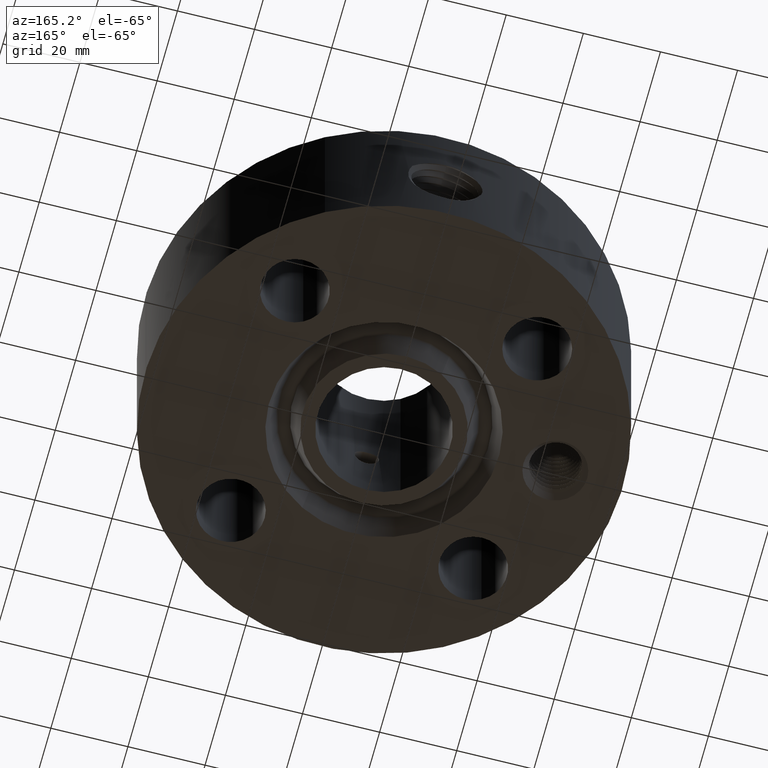
[diagram: clean part render]
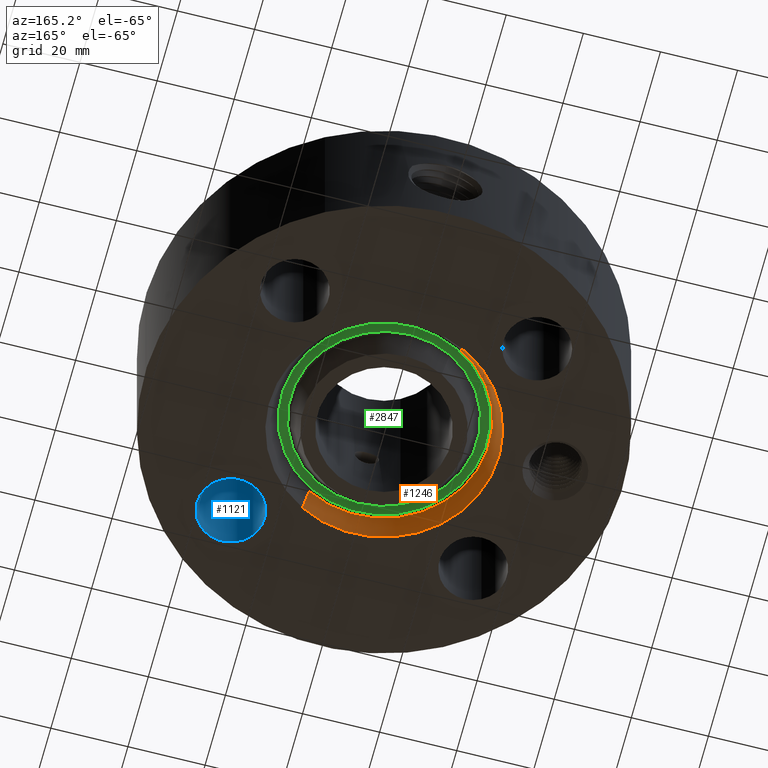
[diagram: same view with three faces highlighted in distinct colors, each labeled with its STEP entity id]
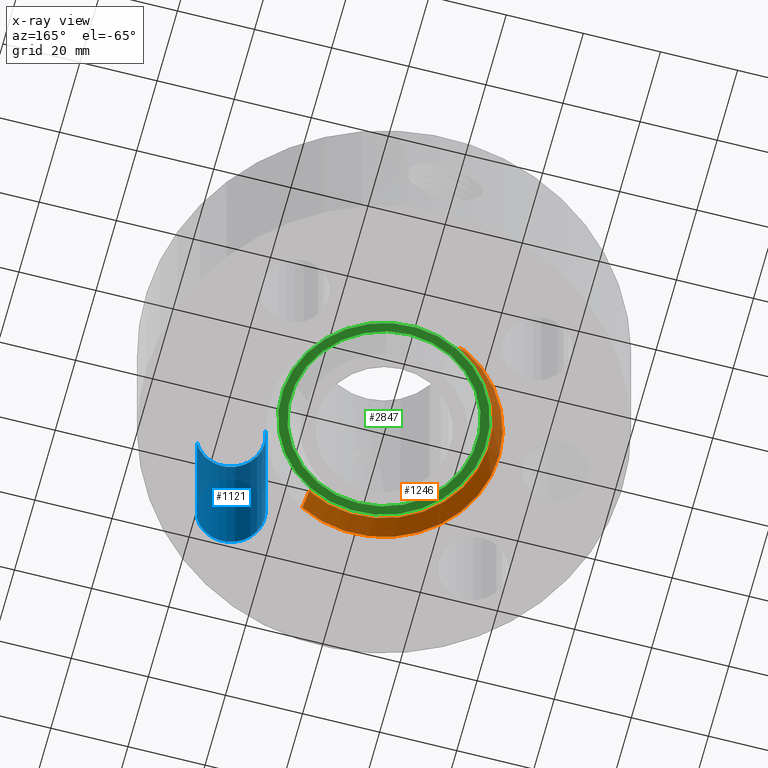
[diagram: x-ray of the same camera — body ghosted, the three highlighted faces saturated]
A machine part, auxiliary view with three faces highlighted in distinct colors.
The next image is the same camera in x-ray (body ghosted, the three faces saturated) — at least one of them is partly hidden behind the body in this view.
Their STEP definitions:

[orange] entity #1246 — the highlighted conical surface has half-angle 23 deg.
#299=AXIS2_PLACEMENT_3D('Circle Axis2P3D',#297,#298,$) ;
#1219=AXIS2_PLACEMENT_3D('Cone Axis2P3D',#1216,#1217,#1218) ;
#1230=AXIS2_PLACEMENT_3D('Circle Axis2P3D',#1228,#1229,$) ;
#297=CARTESIAN_POINT('Axis2P3D Location',(-1.39870617276E-016,1.39870617276E-016,0.)) ;
#301=CARTESIAN_POINT('Vertex',(0.561886731246,-1.02852676254,3.49676543189E-017)) ;
#303=CARTESIAN_POINT('Vertex',(-0.561886731246,1.02852676254,-3.49676543189E-017)) ;
#1216=CARTESIAN_POINT('Axis2P3D Location',(0.,0.,0.231112664984)) ;
#1221=CARTESIAN_POINT('Line Origine',(-0.538370547572,0.985480677062,0.115556332492)) ;
#1225=CARTESIAN_POINT('Vertex',(-0.514854363898,0.942434591585,0.231112664984)) ;
#1228=CARTESIAN_POINT('Axis2P3D Location',(0.,0.,0.231112664984)) ;
#1232=CARTESIAN_POINT('Vertex',(0.514854363898,-0.942434591585,0.231112664984)) ;
#1235=CARTESIAN_POINT('Line Origine',(0.538370547572,-0.985480677062,0.115556332492)) ;
#298=DIRECTION('Axis2P3D Direction',(0.,0.,-0.0393700787402)) ;
#1217=DIRECTION('Axis2P3D Direction',(-0.,-0.,-0.0393700787402)) ;
#1218=DIRECTION('Axis2P3D XDirection',(-0.0188750212049,0.0345504945626,0.)) ;
#1222=DIRECTION('Vector Direction',(-0.00737505833565,0.0134999537303,-0.0362403485611)) ;
#1229=DIRECTION('Axis2P3D Direction',(0.,0.,-0.0393700787402)) ;
#1236=DIRECTION('Vector Direction',(0.00737505833565,-0.0134999537303,-0.0362403485611)) ;
#1223=VECTOR('Line Direction',#1222,0.0393700787402) ;
#1237=VECTOR('Line Direction',#1236,0.0393700787402) ;
#1241=ORIENTED_EDGE('',*,*,#305,.T.) ;
#1242=ORIENTED_EDGE('',*,*,#1227,.T.) ;
#1243=ORIENTED_EDGE('',*,*,#1234,.T.) ;
#1244=ORIENTED_EDGE('',*,*,#1239,.F.) ;
#1246=ADVANCED_FACE('PartBody',(#1245),#1220,.F.) ;
#300=CIRCLE('generated circle',#299,1.172) ;
#1231=CIRCLE('generated circle',#1230,1.07389849401) ;
#1220=CONICAL_SURFACE('Cone',#1219,1.07389849401,0.401425727959) ;
#305=EDGE_CURVE('',#302,#304,#300,.T.) ;
#1227=EDGE_CURVE('',#304,#1226,#1224,.F.) ;
#1234=EDGE_CURVE('',#1226,#1233,#1231,.F.) ;
#1239=EDGE_CURVE('',#302,#1233,#1238,.F.) ;
#1240=EDGE_LOOP('',(#1241,#1242,#1243,#1244)) ;
#1245=FACE_OUTER_BOUND('',#1240,.T.) ;
#1224=LINE('Line',#1221,#1223) ;
#1238=LINE('Line',#1235,#1237) ;
#302=VERTEX_POINT('',#301) ;
#304=VERTEX_POINT('',#303) ;
#1226=VERTEX_POINT('',#1225) ;
#1233=VERTEX_POINT('',#1232) ;

[blue] entity #1121 — the highlighted cylindrical surface (edge-blend (fillet) strip) has radius 8.763 mm, axis along (0, -0, -1).
#227=AXIS2_PLACEMENT_3D('Circle Axis2P3D',#225,#226,$) ;
#484=AXIS2_PLACEMENT_3D('Circle Axis2P3D',#482,#483,$) ;
#1103=AXIS2_PLACEMENT_3D('Cylinder Axis2P3D',#1100,#1101,#1102) ;
#225=CARTESIAN_POINT('Axis2P3D Location',(1.23743686708,-1.23743686708,0.)) ;
#229=CARTESIAN_POINT('Vertex',(1.54020285093,-1.4028386779,0.)) ;
#231=CARTESIAN_POINT('Vertex',(0.934670883228,-1.07203505626,0.)) ;
#477=CARTESIAN_POINT('Vertex',(0.934670883228,-1.07203505626,1.75000000001)) ;
#479=CARTESIAN_POINT('Vertex',(1.54020285093,-1.4028386779,1.75000000001)) ;
#482=CARTESIAN_POINT('Axis2P3D Location',(1.23743686708,-1.23743686708,1.75000000001)) ;
#1100=CARTESIAN_POINT('Axis2P3D Location',(1.23743686708,-1.23743686708,1.74606299213)) ;
#1105=CARTESIAN_POINT('Line Origine',(1.54020285093,-1.4028386779,0.875000000003)) ;
#1110=CARTESIAN_POINT('Line Origine',(0.934670883228,-1.07203505626,0.875000000003)) ;
#226=DIRECTION('Axis2P3D Direction',(0.,0.,-0.0393700787402)) ;
#483=DIRECTION('Axis2P3D Direction',(0.,0.,-0.0393700787402)) ;
#1101=DIRECTION('Axis2P3D Direction',(0.,-0.,-0.0393700787402)) ;
#1102=DIRECTION('Axis2P3D XDirection',(-0.0345504945626,0.0188750212049,0.)) ;
#1106=DIRECTION('Vector Direction',(0.,0.,-0.0393700787402)) ;
#1111=DIRECTION('Vector Direction',(0.,0.,-0.0393700787402)) ;
#1107=VECTOR('Line Direction',#1106,0.0393700787402) ;
#1112=VECTOR('Line Direction',#1111,0.0393700787402) ;
#1116=ORIENTED_EDGE('',*,*,#1109,.F.) ;
#1117=ORIENTED_EDGE('',*,*,#233,.T.) ;
#1118=ORIENTED_EDGE('',*,*,#1114,.T.) ;
#1119=ORIENTED_EDGE('',*,*,#486,.F.) ;
#1121=ADVANCED_FACE('PartBody',(#1120),#1104,.F.) ;
#228=CIRCLE('generated circle',#227,0.345000000001) ;
#485=CIRCLE('generated circle',#484,0.345000000001) ;
#1104=CYLINDRICAL_SURFACE('generated cylinder',#1103,0.345000000001) ;
#233=EDGE_CURVE('',#230,#232,#228,.T.) ;
#486=EDGE_CURVE('',#480,#478,#485,.T.) ;
#1109=EDGE_CURVE('',#230,#480,#1108,.F.) ;
#1114=EDGE_CURVE('',#232,#478,#1113,.F.) ;
#1115=EDGE_LOOP('',(#1116,#1117,#1118,#1119)) ;
#1120=FACE_OUTER_BOUND('',#1115,.T.) ;
#1108=LINE('Line',#1105,#1107) ;
#1113=LINE('Line',#1110,#1112) ;
#230=VERTEX_POINT('',#229) ;
#232=VERTEX_POINT('',#231) ;
#478=VERTEX_POINT('',#477) ;
#480=VERTEX_POINT('',#479) ;

[green] entity #2847 — the highlighted planar face has unit normal (0, 0, 1).
#2063=AXIS2_PLACEMENT_3D('Circle Axis2P3D',#2061,#2062,$) ;
#2082=AXIS2_PLACEMENT_3D('Circle Axis2P3D',#2080,#2081,$) ;
#2823=AXIS2_PLACEMENT_3D('Plane Axis2P3D',#2820,#2821,#2822) ;
#2831=AXIS2_PLACEMENT_3D('Circle Axis2P3D',#2829,#2830,$) ;
#2840=AXIS2_PLACEMENT_3D('Circle Axis2P3D',#2838,#2839,$) ;
#2058=CARTESIAN_POINT('Vertex',(-0.501173644308,0.917392202352,0.250000000001)) ;
#2061=CARTESIAN_POINT('Axis2P3D Location',(0.,0.,0.250000000001)) ;
#2065=CARTESIAN_POINT('Vertex',(0.501173644308,-0.917392202352,0.250000000001)) ;
#2080=CARTESIAN_POINT('Axis2P3D Location',(0.,0.,0.250000000001)) ;
#2820=CARTESIAN_POINT('Axis2P3D Location',(0.,0.954637156453,0.250000000001)) ;
#2829=CARTESIAN_POINT('Axis2P3D Location',(0.,0.,0.250000000001)) ;
#2833=CARTESIAN_POINT('Vertex',(0.457677432904,-0.837772921436,0.250000000001)) ;
#2835=CARTESIAN_POINT('Vertex',(-0.457677432904,0.837772921436,0.250000000001)) ;
#2838=CARTESIAN_POINT('Axis2P3D Location',(0.,0.,0.250000000001)) ;
#2062=DIRECTION('Axis2P3D Direction',(0.,0.,0.0393700787402)) ;
#2081=DIRECTION('Axis2P3D Direction',(0.,0.,0.0393700787402)) ;
#2821=DIRECTION('Axis2P3D Direction',(0.,0.,0.0393700787402)) ;
#2822=DIRECTION('Axis2P3D XDirection',(0.0393700787402,0.,0.)) ;
#2830=DIRECTION('Axis2P3D Direction',(0.,0.,0.0393700787402)) ;
#2839=DIRECTION('Axis2P3D Direction',(0.,0.,0.0393700787402)) ;
#2826=ORIENTED_EDGE('',*,*,#2067,.F.) ;
#2827=ORIENTED_EDGE('',*,*,#2084,.F.) ;
#2844=ORIENTED_EDGE('',*,*,#2837,.T.) ;
#2845=ORIENTED_EDGE('',*,*,#2842,.T.) ;
#2846=FACE_BOUND('',#2843,.T.) ;
#2847=ADVANCED_FACE('PartBody',(#2828,#2846),#2824,.F.) ;
#2064=CIRCLE('generated circle',#2063,1.04536284355) ;
#2083=CIRCLE('generated circle',#2082,1.04536284355) ;
#2832=CIRCLE('generated circle',#2831,0.954637156453) ;
#2841=CIRCLE('generated circle',#2840,0.954637156453) ;
#2067=EDGE_CURVE('',#2059,#2066,#2064,.T.) ;
#2084=EDGE_CURVE('',#2066,#2059,#2083,.T.) ;
#2837=EDGE_CURVE('',#2834,#2836,#2832,.T.) ;
#2842=EDGE_CURVE('',#2836,#2834,#2841,.T.) ;
#2825=EDGE_LOOP('',(#2826,#2827)) ;
#2843=EDGE_LOOP('',(#2844,#2845)) ;
#2828=FACE_OUTER_BOUND('',#2825,.T.) ;
#2824=PLANE('',#2823) ;
#2059=VERTEX_POINT('',#2058) ;
#2066=VERTEX_POINT('',#2065) ;
#2834=VERTEX_POINT('',#2833) ;
#2836=VERTEX_POINT('',#2835) ;